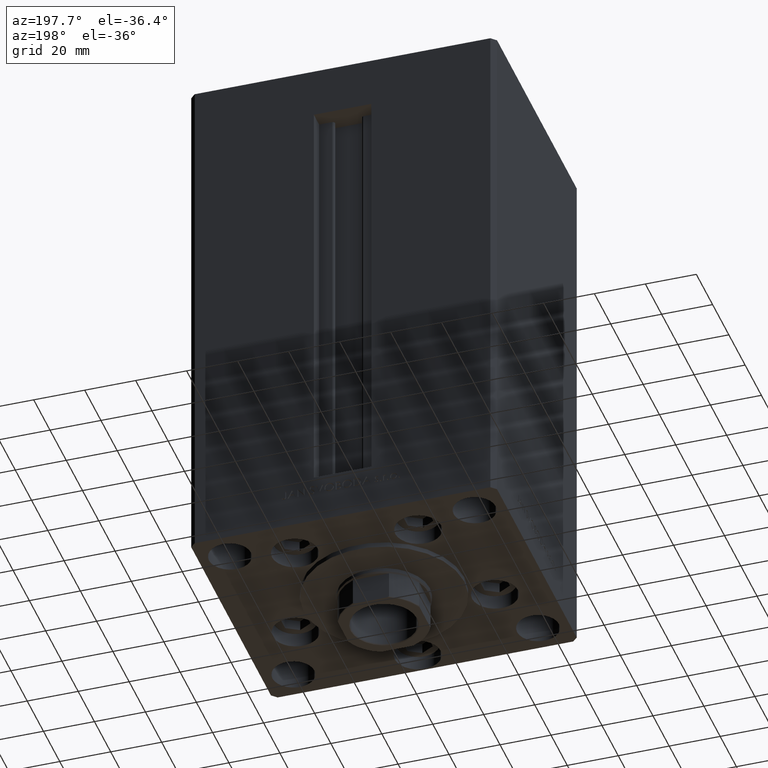
[diagram: clean part render]
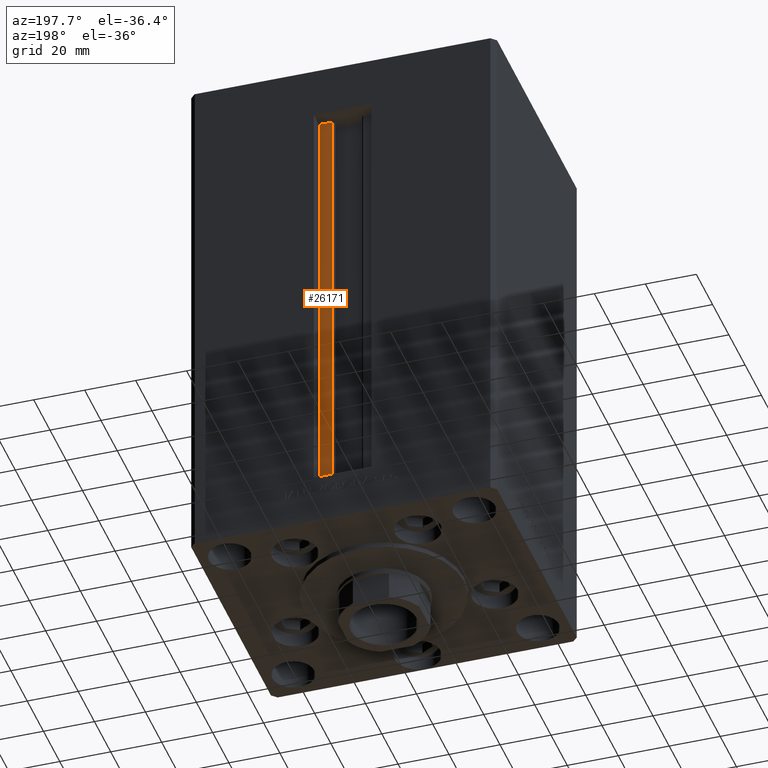
[diagram: same view with one face highlighted and labeled with its STEP entity id]
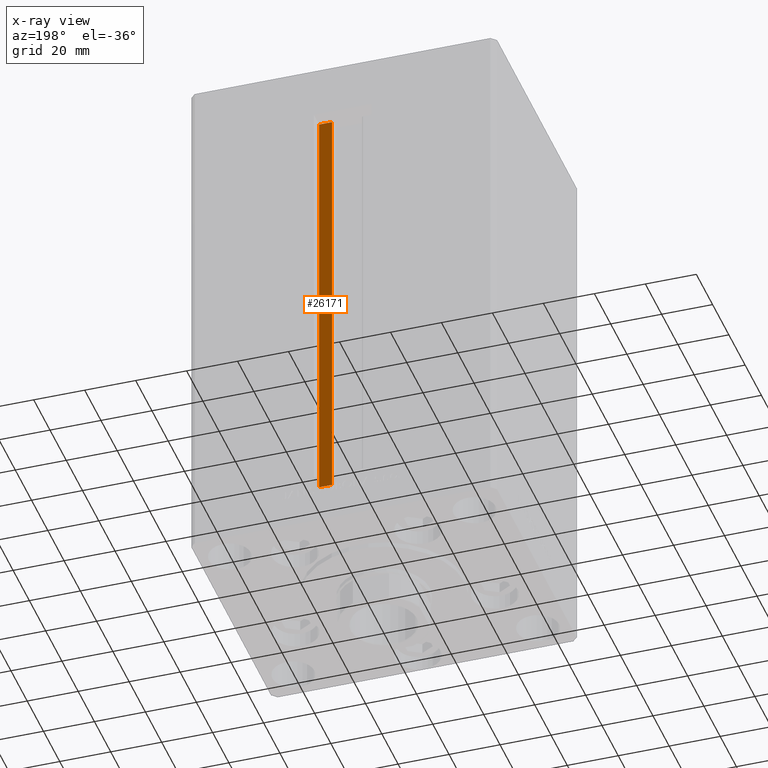
[diagram: x-ray of the same camera — body ghosted, the highlighted face saturated]
A machine part, auxiliary view. The second image highlights one B-rep face of the part: STEP entity #26171.
The next image is the same camera in x-ray: the body ghosted, the highlighted face saturated — about 0% of this face is hidden behind the body in this view.
In plain terms, the highlighted planar face has unit normal (0, -1, 0).
Its self-contained STEP definition (entity closure, byte-faithful):
#699 = LINE ( 'NONE', #45947, #35933 ) ;
#732 = ORIENTED_EDGE ( 'NONE', *, *, #46306, .F. ) ;
#976 = VERTEX_POINT ( 'NONE', #34499 ) ;
#1771 = CARTESIAN_POINT ( 'NONE',  ( 6.183333333334001480, 44.50000000000000000, 0.000000000000000000 ) ) ;
#1941 = CARTESIAN_POINT ( 'NONE',  ( 6.183333333334001480, 44.50000000000000000, 0.000000000000000000 ) ) ;
#5912 = DIRECTION ( 'NONE',  ( 0.000000000000000000, -0.000000000000000000, -1.000000000000000000 ) ) ;
#6648 = CARTESIAN_POINT ( 'NONE',  ( 6.183333333334001480, 44.50000000000000000, 168.5000000000000000 ) ) ;
#9912 = LINE ( 'NONE', #48430, #37793 ) ;
#10299 = CARTESIAN_POINT ( 'NONE',  ( 11.25000000000000178, 44.50000000000000000, 168.5000000000000000 ) ) ;
#11361 = LINE ( 'NONE', #14831, #26145 ) ;
#11698 = ORIENTED_EDGE ( 'NONE', *, *, #26788, .F. ) ;
#14106 = FACE_OUTER_BOUND ( 'NONE', #19708, .T. ) ;
#14214 = VERTEX_POINT ( 'NONE', #10299 ) ;
#14831 = CARTESIAN_POINT ( 'NONE',  ( 0.000000000000000000, 44.50000000000000000, 168.5000000000000000 ) ) ;
#17098 = DIRECTION ( 'NONE',  ( 0.000000000000000000, -1.000000000000000000, 0.000000000000000000 ) ) ;
#17366 = DIRECTION ( 'NONE',  ( 1.000000000000000000, 0.000000000000000000, 0.000000000000000000 ) ) ;
#17512 = CARTESIAN_POINT ( 'NONE',  ( 11.25000000000000178, 44.50000000000000000, 0.000000000000000000 ) ) ;
#19708 = EDGE_LOOP ( 'NONE', ( #732, #11698, #41248, #42366 ) ) ;
#26145 = VECTOR ( 'NONE', #26525, 1000.000000000000000 ) ;
#26171 = ADVANCED_FACE ( 'NONE', ( #14106 ), #47184, .F. ) ;
#26525 = DIRECTION ( 'NONE',  ( -1.000000000000000000, 0.000000000000000000, 0.000000000000000000 ) ) ;
#26788 = EDGE_CURVE ( 'NONE', #976, #43827, #9912, .T. ) ;
#27421 = AXIS2_PLACEMENT_3D ( 'NONE', #1941, #17098, #5912 ) ;
#28882 = LINE ( 'NONE', #1771, #36585 ) ;
#34499 = CARTESIAN_POINT ( 'NONE',  ( 6.183333333334001480, 44.50000000000000000, 0.000000000000000000 ) ) ;
#34995 = DIRECTION ( 'NONE',  ( -0.000000000000000000, -0.000000000000000000, 1.000000000000000000 ) ) ;
#35933 = VECTOR ( 'NONE', #34995, 1000.000000000000000 ) ;
#36585 = VECTOR ( 'NONE', #47008, 1000.000000000000000 ) ;
#36860 = VERTEX_POINT ( 'NONE', #6648 ) ;
#37793 = VECTOR ( 'NONE', #17366, 1000.000000000000000 ) ;
#38958 = EDGE_CURVE ( 'NONE', #14214, #36860, #11361, .T. ) ;
#41248 = ORIENTED_EDGE ( 'NONE', *, *, #41990, .T. ) ;
#41990 = EDGE_CURVE ( 'NONE', #976, #36860, #28882, .T. ) ;
#42366 = ORIENTED_EDGE ( 'NONE', *, *, #38958, .F. ) ;
#43827 = VERTEX_POINT ( 'NONE', #17512 ) ;
#45947 = CARTESIAN_POINT ( 'NONE',  ( 11.25000000000000178, 44.50000000000000000, 0.000000000000000000 ) ) ;
#46306 = EDGE_CURVE ( 'NONE', #43827, #14214, #699, .T. ) ;
#47008 = DIRECTION ( 'NONE',  ( -0.000000000000000000, -0.000000000000000000, 1.000000000000000000 ) ) ;
#47184 = PLANE ( 'NONE',  #27421 ) ;
#48430 = CARTESIAN_POINT ( 'NONE',  ( 6.183333333334001480, 44.50000000000000000, 0.000000000000000000 ) ) ;